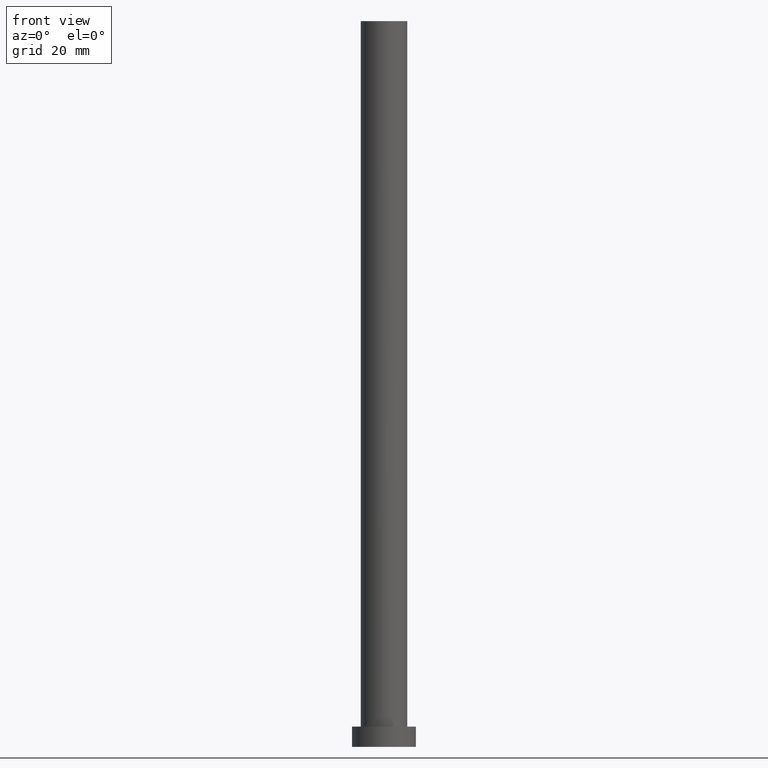
[diagram: clean part render]
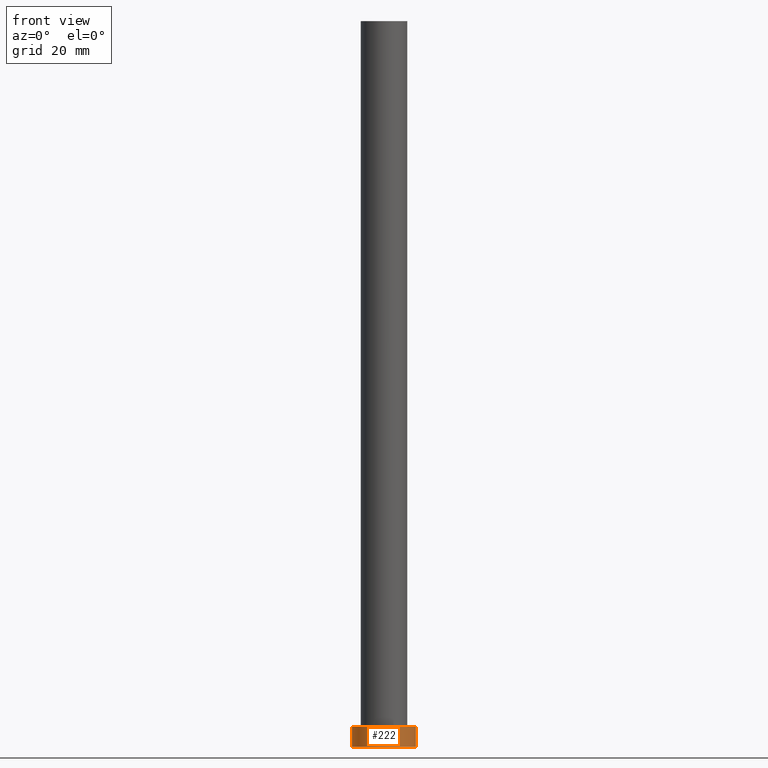
[diagram: same view with one face highlighted and labeled with its STEP entity id]
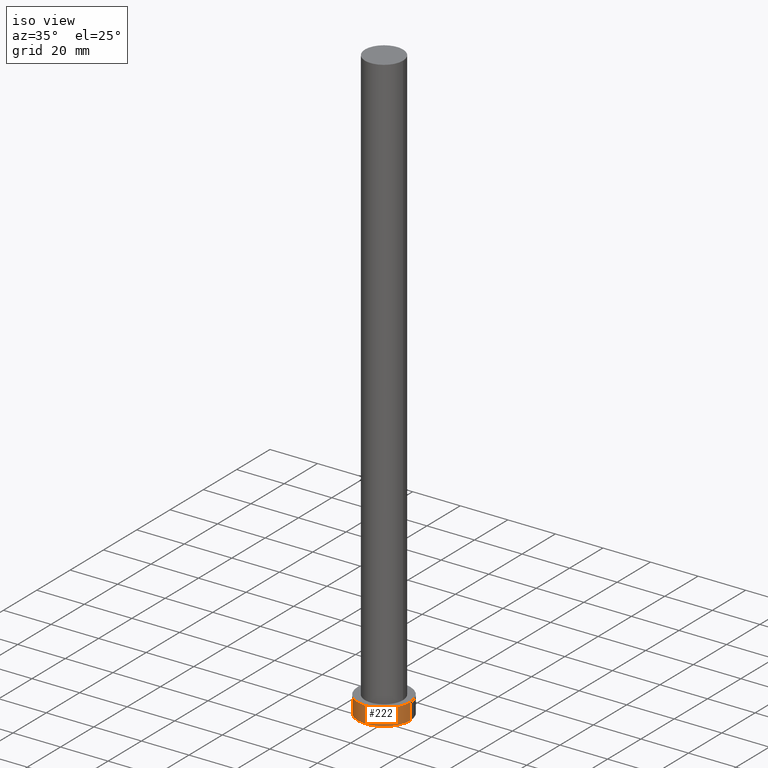
[diagram: same view with one face highlighted and labeled with its STEP entity id]
A machine part, front view. The second image highlights one B-rep face of the part: STEP entity #222.
A second angle (iso view) of the same face is appended — the face is thin or edge-on in the first view.
In plain terms, the highlighted cylindrical surface (edge-blend (fillet) strip) has radius 11 mm, axis along (-0, -0, -1).
Its self-contained STEP definition (entity closure, byte-faithful):
#4 = CARTESIAN_POINT ( 'NONE',  ( 11.00000000000000000, 1.347111479062088405E-15, 7.000000000000000000 ) ) ;
#13 = ORIENTED_EDGE ( 'NONE', *, *, #230, .T. ) ;
#34 = VERTEX_POINT ( 'NONE', #176 ) ;
#35 = ORIENTED_EDGE ( 'NONE', *, *, #93, .T. ) ;
#53 = EDGE_CURVE ( 'NONE', #118, #215, #192, .T. ) ;
#58 = CYLINDRICAL_SURFACE ( 'NONE', #169, 11.00000000000000000 ) ;
#77 = CIRCLE ( 'NONE', #162, 11.00000000000000000 ) ;
#79 = EDGE_LOOP ( 'NONE', ( #214, #124, #13, #35 ) ) ;
#84 = CARTESIAN_POINT ( 'NONE',  ( 0.000000000000000000, 0.000000000000000000, 7.000000000000000000 ) ) ;
#93 = EDGE_CURVE ( 'NONE', #34, #215, #148, .T. ) ;
#105 = DIRECTION ( 'NONE',  ( 0.000000000000000000, 0.000000000000000000, 1.000000000000000000 ) ) ;
#109 = CARTESIAN_POINT ( 'NONE',  ( 11.00000000000000000, 1.347111479062088405E-15, 0.000000000000000000 ) ) ;
#118 = VERTEX_POINT ( 'NONE', #4 ) ;
#119 = VECTOR ( 'NONE', #253, 1000.000000000000000 ) ;
#124 = ORIENTED_EDGE ( 'NONE', *, *, #167, .F. ) ;
#127 = CARTESIAN_POINT ( 'NONE',  ( 0.000000000000000000, 0.000000000000000000, 0.000000000000000000 ) ) ;
#142 = DIRECTION ( 'NONE',  ( 1.000000000000000000, 0.000000000000000000, 0.000000000000000000 ) ) ;
#145 = DIRECTION ( 'NONE',  ( -1.000000000000000000, 0.000000000000000000, 0.000000000000000000 ) ) ;
#148 = CIRCLE ( 'NONE', #245, 11.00000000000000000 ) ;
#162 = AXIS2_PLACEMENT_3D ( 'NONE', #84, #105, #165 ) ;
#163 = FACE_OUTER_BOUND ( 'NONE', #79, .T. ) ;
#164 = LINE ( 'NONE', #205, #189 ) ;
#165 = DIRECTION ( 'NONE',  ( 1.000000000000000000, 0.000000000000000000, 0.000000000000000000 ) ) ;
#167 = EDGE_CURVE ( 'NONE', #250, #118, #77, .T. ) ;
#169 = AXIS2_PLACEMENT_3D ( 'NONE', #239, #180, #145 ) ;
#176 = CARTESIAN_POINT ( 'NONE',  ( -11.00000000000000000, 0.000000000000000000, 0.000000000000000000 ) ) ;
#180 = DIRECTION ( 'NONE',  ( -0.000000000000000000, -0.000000000000000000, -1.000000000000000000 ) ) ;
#189 = VECTOR ( 'NONE', #224, 1000.000000000000000 ) ;
#192 = LINE ( 'NONE', #235, #119 ) ;
#205 = CARTESIAN_POINT ( 'NONE',  ( -11.00000000000000000, 0.000000000000000000, 7.000000000000000000 ) ) ;
#214 = ORIENTED_EDGE ( 'NONE', *, *, #53, .F. ) ;
#215 = VERTEX_POINT ( 'NONE', #109 ) ;
#222 = ADVANCED_FACE ( 'NONE', ( #163 ), #58, .T. ) ;
#224 = DIRECTION ( 'NONE',  ( -0.000000000000000000, -0.000000000000000000, -1.000000000000000000 ) ) ;
#227 = CARTESIAN_POINT ( 'NONE',  ( -11.00000000000000000, 0.000000000000000000, 7.000000000000000000 ) ) ;
#230 = EDGE_CURVE ( 'NONE', #250, #34, #164, .T. ) ;
#235 = CARTESIAN_POINT ( 'NONE',  ( 11.00000000000000000, 1.347111479062088405E-15, 7.000000000000000000 ) ) ;
#239 = CARTESIAN_POINT ( 'NONE',  ( 0.000000000000000000, 0.000000000000000000, 7.000000000000000000 ) ) ;
#243 = DIRECTION ( 'NONE',  ( 0.000000000000000000, 0.000000000000000000, 1.000000000000000000 ) ) ;
#245 = AXIS2_PLACEMENT_3D ( 'NONE', #127, #243, #142 ) ;
#250 = VERTEX_POINT ( 'NONE', #227 ) ;
#253 = DIRECTION ( 'NONE',  ( -0.000000000000000000, -0.000000000000000000, -1.000000000000000000 ) ) ;